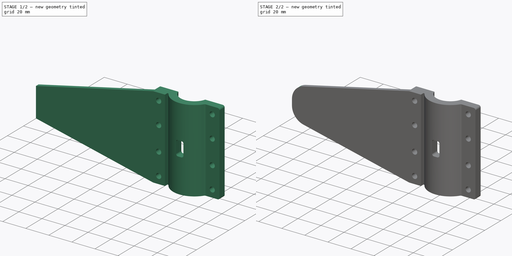
[diagram: build sequence overview — one tinted view per stage of 2, left to right]
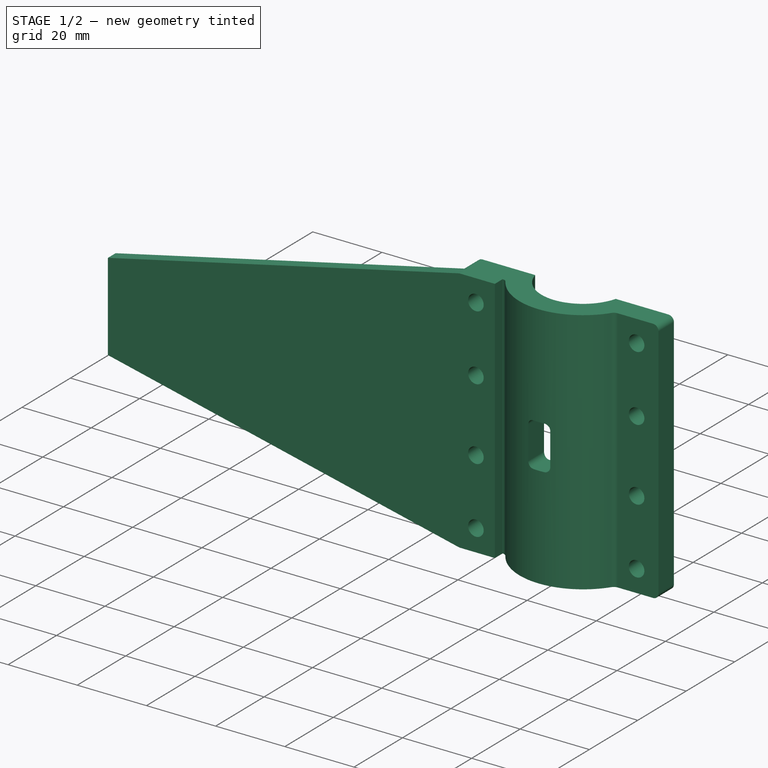
[diagram: stage 1 of 2 — iso view after this stage's code; geometry added in this stage tinted green]
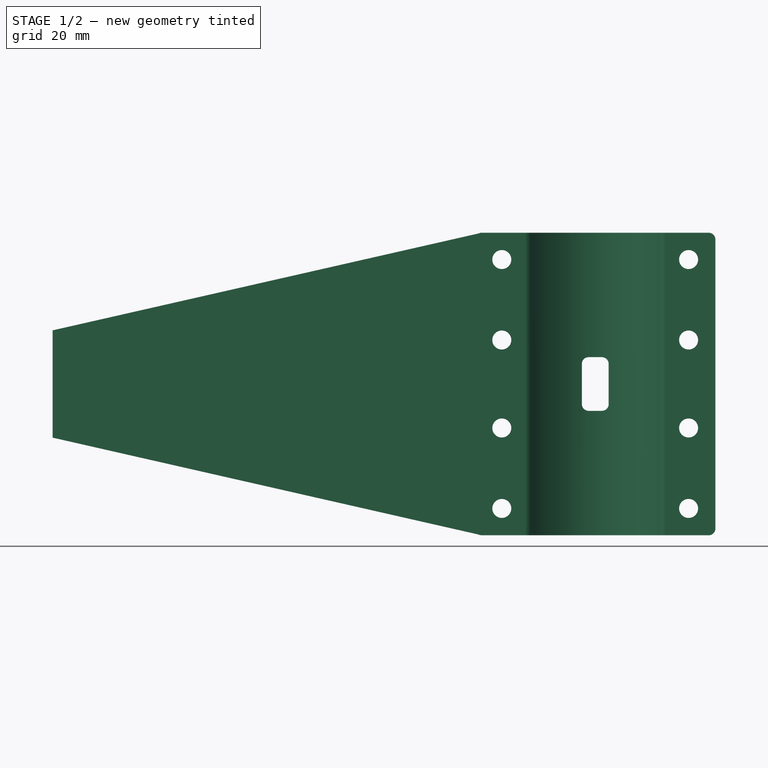
[diagram: stage 1 of 2 — front view after this stage's code; geometry added in this stage tinted green]
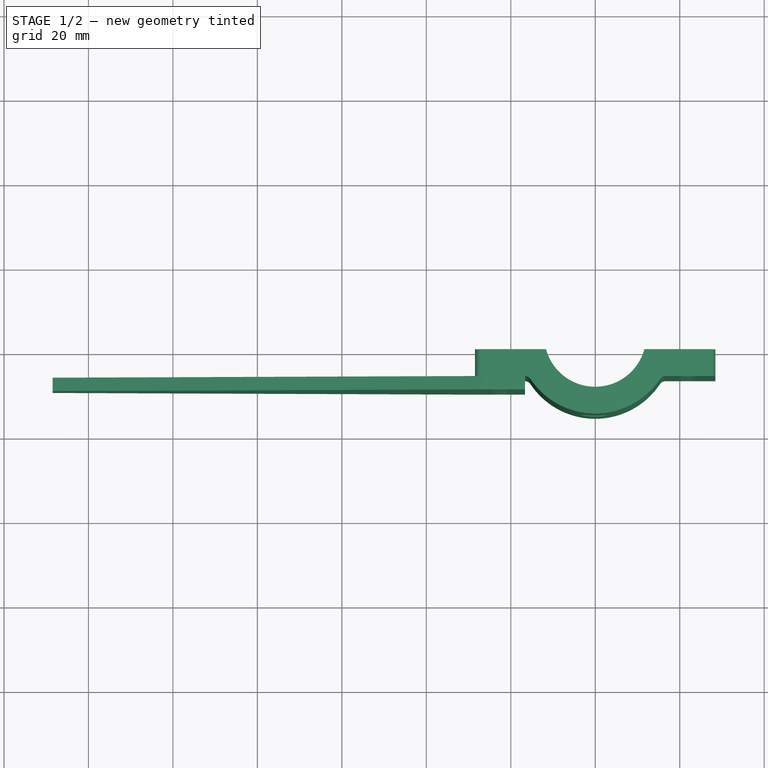
[diagram: stage 1 of 2 — top view after this stage's code; geometry added in this stage tinted green]
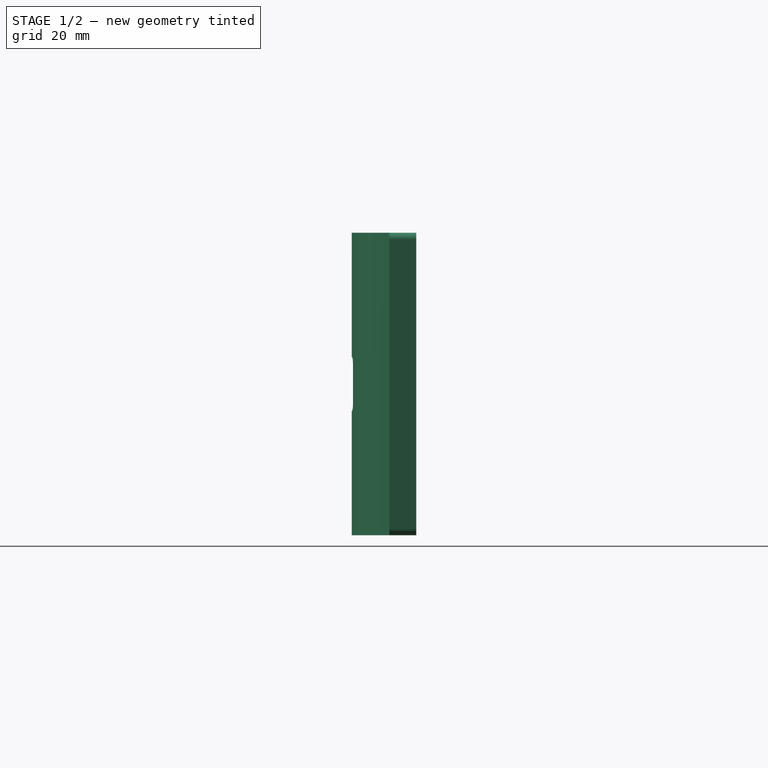
[diagram: stage 1 of 2 — right view after this stage's code; geometry added in this stage tinted green]
FCSTD DOCUMENT  (FreeCAD 0.15R4671 (Git))
Label: center_chassis
License: All rights reserved
LicenseURL: http://en.wikipedia.org/wiki/All_rights_reserved
objects: PartDesign::Fillet×2, Part::FeaturePython×1, Sketcher::SketchObject×1, PartDesign::Pad×1
note: 6 computed .brp shape members not serialized (recipe doc carries the construction recipe); baked Part::Feature solids carry a one-line shape summary decoded from their .brp

FEATURE [Part::FeaturePython] motor_mount_c_01  # a2plus imported part (geometry in sourceFile) (typed FeaturePython)
  Placement = pos=(0,0,0) rot=(1,0,0;3.14159rad)
  fixedPosition = true
  sourceFile = <userpath>/data/projects/robots/beetle_combat/parts/motor_mount_c.fcstd
  timeLastImport = 1.50053e+09
  updateColors = true
FEATURE [Sketcher::SketchObject] Sketch
  ExternalGeometry = -> [motor_mount_c_01]
  Placement = pos=(0,-6.35,0) rot=(0,-0.707107,0.707107;3.14159rad)
  Support = -> motor_mount_c_01 [Face10]
  sketch-geometry (11):
    g0: LineSegment StartX=16.6502 StartY=71.628 StartZ=0 EndX=16.6502 EndY=0 EndZ=0
    g1: LineSegment StartX=16.6502 StartY=0 StartZ=0 EndX=26.8912 EndY=0 EndZ=0
    g2: LineSegment StartX=26.8912 StartY=0 StartZ=0 EndX=128.491 EndY=23.114 EndZ=0
    g3: LineSegment StartX=128.491 StartY=23.114 StartZ=0 EndX=128.491 EndY=48.514 EndZ=0
    g4: LineSegment StartX=128.491 StartY=48.514 StartZ=0 EndX=26.8912 EndY=71.628 EndZ=0
    g5: LineSegment StartX=26.8912 StartY=71.628 StartZ=0 EndX=16.6502 EndY=71.628 EndZ=0
    g6: GeomPoint [constr] X=128.491 Y=35.814 Z=0
    g7: Circle CenterX=22.1287 CenterY=46.228 CenterZ=0 NormalX=0 NormalY=0 NormalZ=1 Radius=2.24815
    g8: Circle CenterX=22.1287 CenterY=65.278 CenterZ=0 NormalX=0 NormalY=0 NormalZ=1 Radius=2.24815
    g9: Circle CenterX=22.1287 CenterY=6.35 CenterZ=0 NormalX=0 NormalY=0 NormalZ=1 Radius=2.24815
    g10: Circle CenterX=22.1287 CenterY=25.4 CenterZ=0 NormalX=0 NormalY=0 NormalZ=1 Radius=2.24815
  constraints (25):
    c: Coincident(g-4,g0)
    c: Coincident(g0,g-5)
    c: Coincident(g0,g1)
    c: Horizontal(g1)
    c: Coincident(g1,g2)
    c: Coincident(g2,g3)
    c: Vertical(g3)
    c: Coincident(g3,g4)
    c: Coincident(g4,g-4)
    c: Coincident(g4,g5)
    c: Coincident(g5,g0)
    c: DistanceX(g3,g4) = -101.6
    c: PointOnObject(g6,g3)
    c: Symmetric(g3,g2,g6)
    c: Equal(g4,g2)
    c: Coincident(g1,g-5)
    c: DistanceY(g3,g2) = -25.4
    c: Equal(g8,g-6)
    c: Equal(g8,g7)
    c: Equal(g7,g10)
    c: Equal(g10,g9)
    c: Coincident(g8,g-6)
    c: Coincident(g7,g-7)
    c: Coincident(g10,g-8)
    c: Coincident(g9,g-9)
FEATURE [PartDesign::Pad] Pad
  Length = 3.175
  Length2 = 100
  Placement = pos=(0,0,0) rot=(1,0,0;3.14159rad)
  Sketch = -> Sketch
  Type = 0
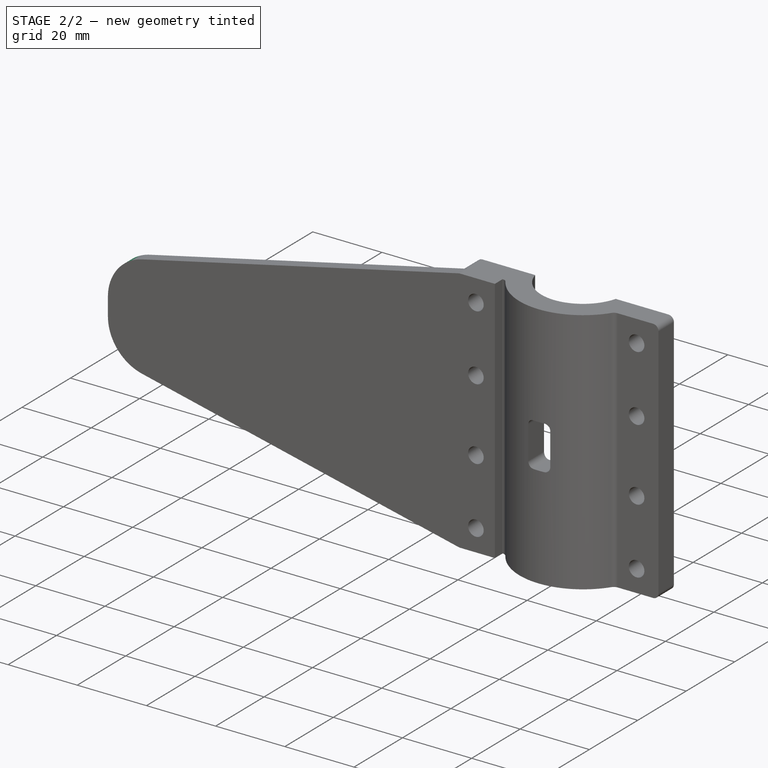
[diagram: stage 2 of 2 — iso view after this stage's code; geometry added in this stage tinted green]
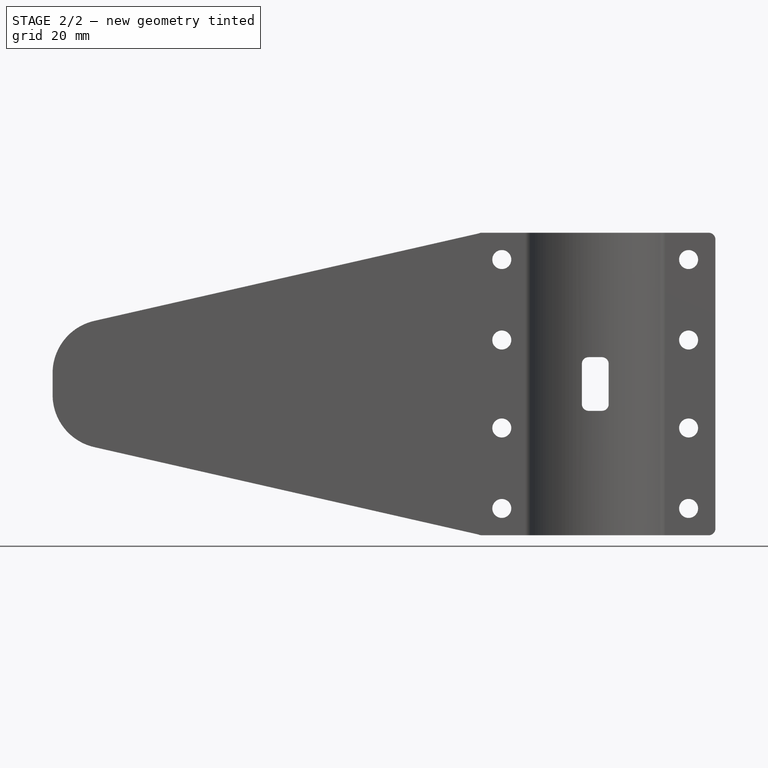
[diagram: stage 2 of 2 — front view after this stage's code; geometry added in this stage tinted green]
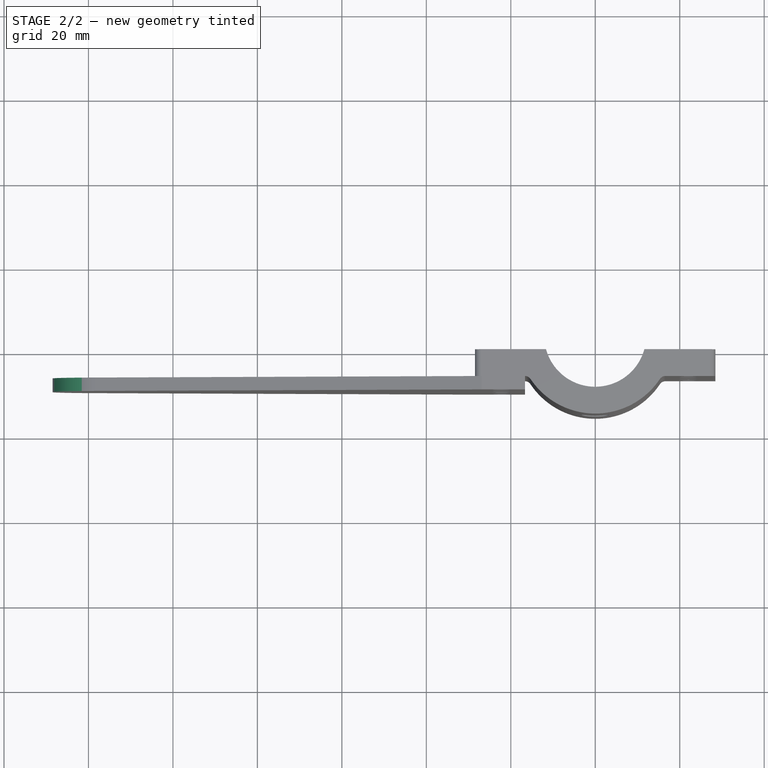
[diagram: stage 2 of 2 — top view after this stage's code; geometry added in this stage tinted green]
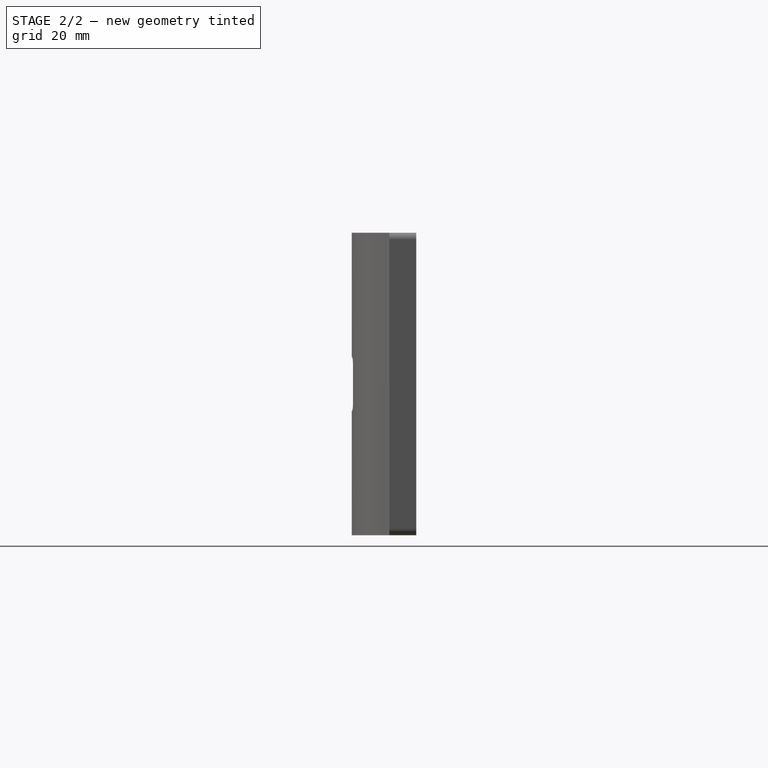
[diagram: stage 2 of 2 — right view after this stage's code; geometry added in this stage tinted green]
FEATURE [PartDesign::Fillet] Fillet
  Base = -> Pad [Edge19]
  Placement = pos=(0,0,0) rot=(1,0,0;3.14159rad)
  Radius = 12.7
FEATURE [PartDesign::Fillet] Fillet001
  Base = -> Fillet [Edge14]
  Placement = pos=(0,0,0) rot=(1,0,0;3.14159rad)
  Radius = 12.7
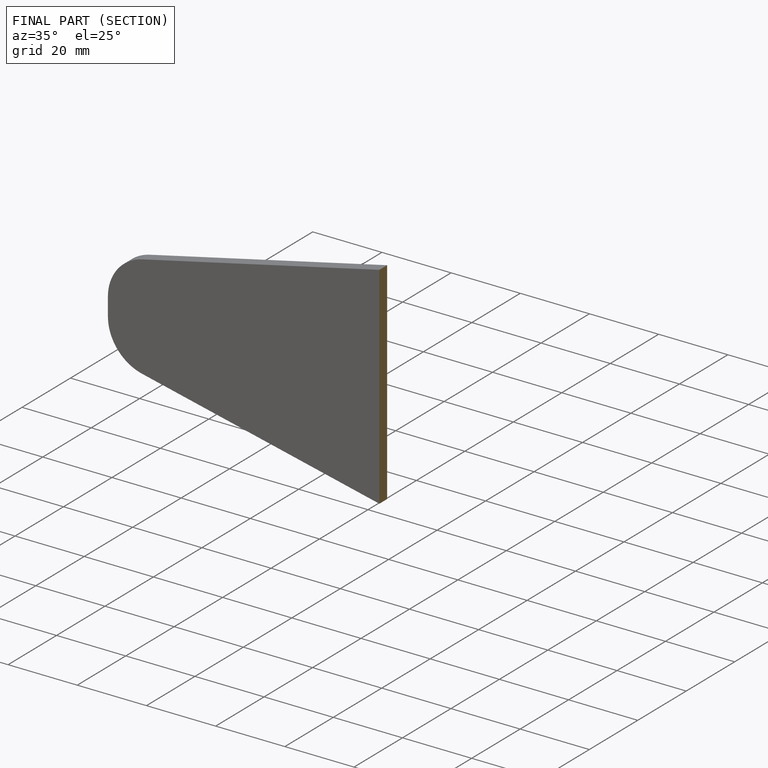
[diagram: finished part — half-section view (interior)]
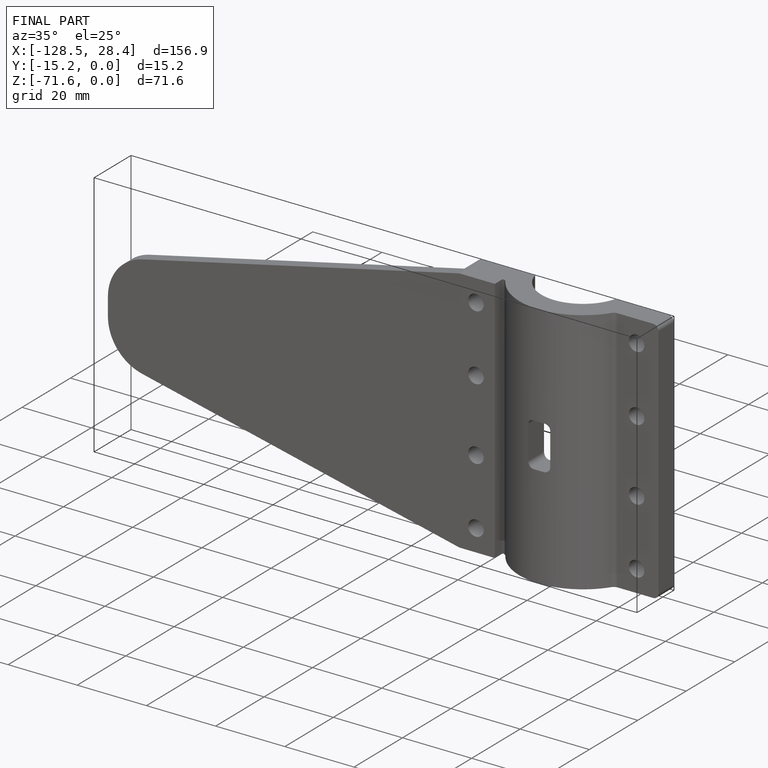
[diagram: finished part — iso view with bounding-box wireframe]
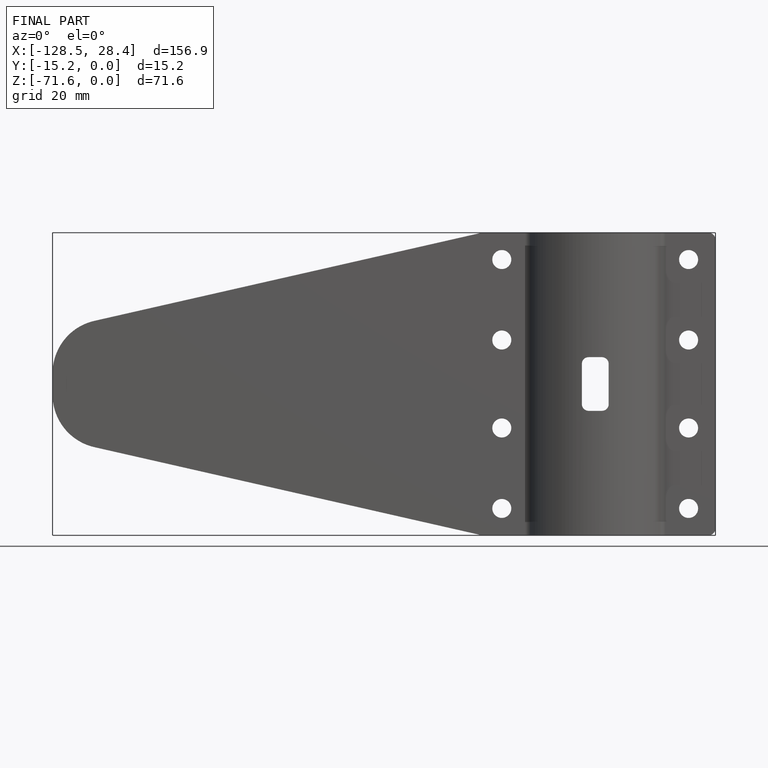
[diagram: finished part — front view with bounding-box wireframe]
